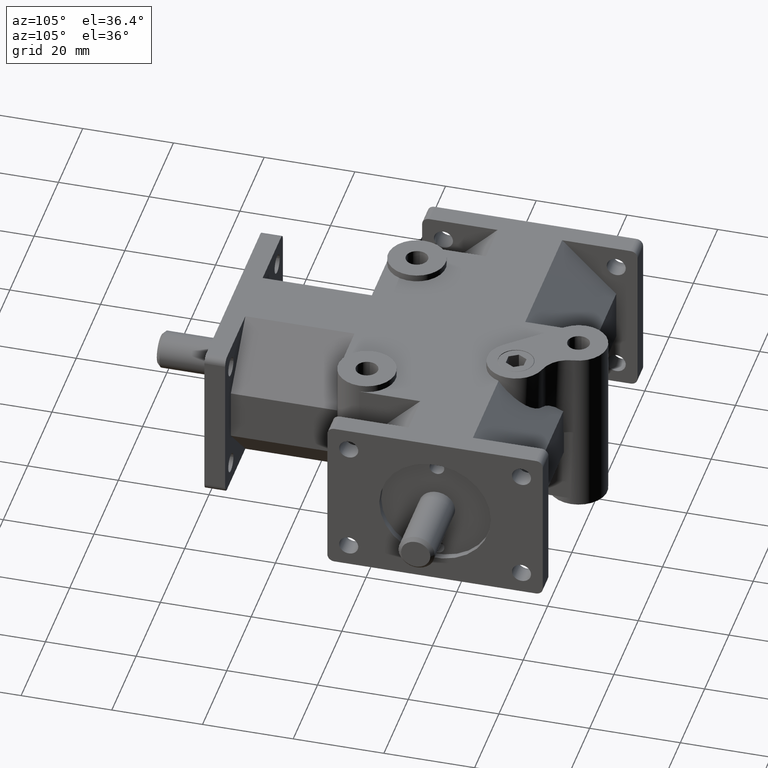
[diagram: clean part render]
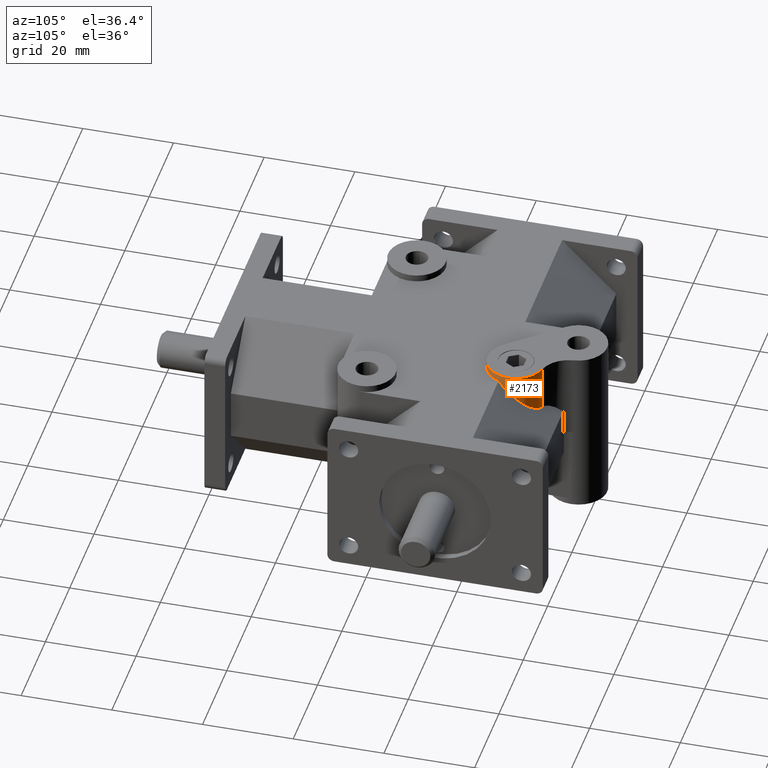
[diagram: same view with one face highlighted and labeled with its STEP entity id]
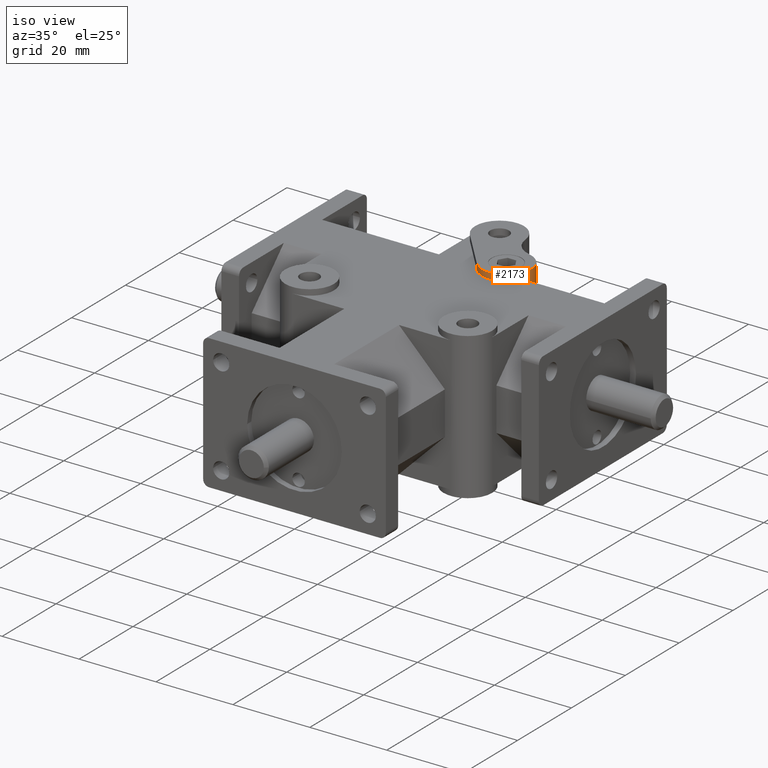
[diagram: same view with one face highlighted and labeled with its STEP entity id]
A machine part, auxiliary view. The second image highlights one B-rep face of the part: STEP entity #2173.
A second angle (iso view) of the same face is appended — the face is thin or edge-on in the first view.
In plain terms, the highlighted cylindrical surface (edge-blend (fillet) strip) has radius 6.35 mm, axis along (0, 0, 1).
Its self-contained STEP definition (entity closure, byte-faithful):
#16=ELLIPSE('',#2406,8.98025612106915,6.35);
#235=FACE_OUTER_BOUND('',#394,.T.);
#394=EDGE_LOOP('',(#1937,#1938,#1939,#1940,#1941));
#484=CIRCLE('',#2317,6.35);
#496=CIRCLE('',#2341,6.35);
#706=LINE('',#3674,#901);
#707=LINE('',#3675,#902);
#901=VECTOR('',#3032,1.);
#902=VECTOR('',#3033,1.);
#1022=VERTEX_POINT('',#3375);
#1023=VERTEX_POINT('',#3377);
#1067=VERTEX_POINT('',#3497);
#1068=VERTEX_POINT('',#3499);
#1107=VERTEX_POINT('',#3659);
#1250=EDGE_CURVE('',#1022,#1023,#484,.T.);
#1315=EDGE_CURVE('',#1068,#1067,#496,.T.);
#1395=EDGE_CURVE('',#1107,#1022,#16,.T.);
#1402=EDGE_CURVE('',#1107,#1068,#706,.T.);
#1403=EDGE_CURVE('',#1023,#1067,#707,.T.);
#1937=ORIENTED_EDGE('',*,*,#1395,.F.);
#1938=ORIENTED_EDGE('',*,*,#1402,.T.);
#1939=ORIENTED_EDGE('',*,*,#1315,.T.);
#1940=ORIENTED_EDGE('',*,*,#1403,.F.);
#1941=ORIENTED_EDGE('',*,*,#1250,.F.);
#2064=CYLINDRICAL_SURFACE('',#2411,6.35);
#2173=ADVANCED_FACE('',(#235),#2064,.T.);
#2317=AXIS2_PLACEMENT_3D('',#3378,#2727,#2728);
#2341=AXIS2_PLACEMENT_3D('',#3500,#2828,#2829);
#2406=AXIS2_PLACEMENT_3D('',#3661,#3015,#3016);
#2411=AXIS2_PLACEMENT_3D('',#3673,#3030,#3031);
#2727=DIRECTION('center_axis',(0.,0.,-1.));
#2728=DIRECTION('ref_axis',(1.,0.,0.));
#2828=DIRECTION('center_axis',(0.,0.,-1.));
#2829=DIRECTION('ref_axis',(1.,0.,0.));
#3015=DIRECTION('center_axis',(0.,-0.707106781186547,-0.707106781186548));
#3016=DIRECTION('ref_axis',(0.,0.707106781186548,-0.707106781186547));
#3030=DIRECTION('center_axis',(0.,0.,1.));
#3031=DIRECTION('ref_axis',(1.,0.,0.));
#3032=DIRECTION('',(0.,0.,1.));
#3033=DIRECTION('',(0.,0.,1.));
#3375=CARTESIAN_POINT('',(15.5762471251628,62.6745,17.526));
#3377=CARTESIAN_POINT('',(4.84617390066584,60.8100138233023,17.526));
#3378=CARTESIAN_POINT('Origin',(9.652,64.9605,17.526));
#3497=CARTESIAN_POINT('',(4.84617390066584,60.8100138233023,19.05));
#3499=CARTESIAN_POINT('',(11.149182667989,71.1314759405359,19.05));
#3500=CARTESIAN_POINT('Origin',(9.652,64.9605,19.05));
#3659=CARTESIAN_POINT('',(11.149182667989,71.1314759405359,9.06902405946408));
#3661=CARTESIAN_POINT('Origin',(9.652,64.9605,15.24));
#3673=CARTESIAN_POINT('Origin',(9.652,64.9605,0.));
#3674=CARTESIAN_POINT('',(11.149182667989,71.1314759405359,0.));
#3675=CARTESIAN_POINT('',(4.84617390066584,60.8100138233023,0.));